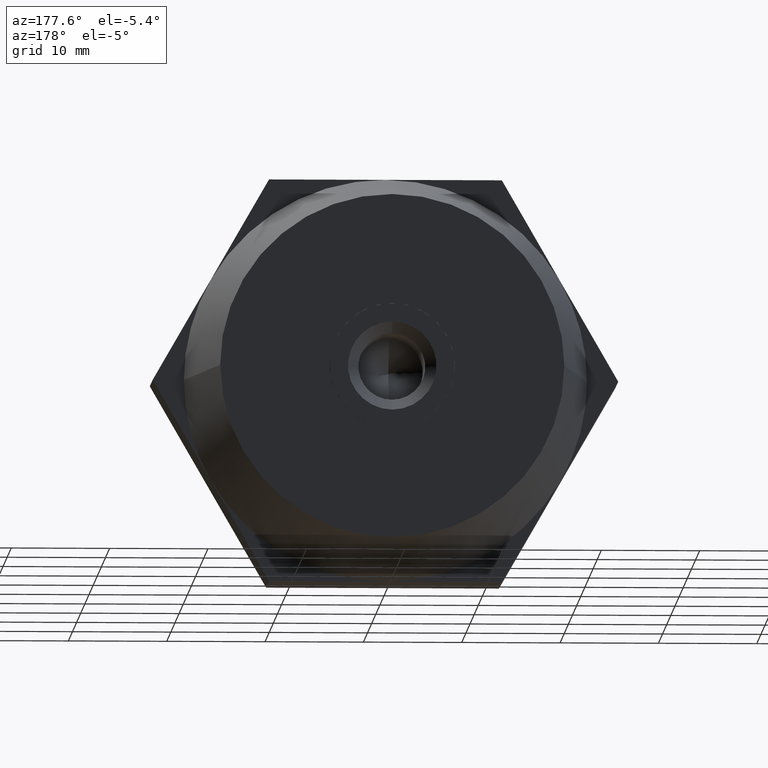
[diagram: clean part render]
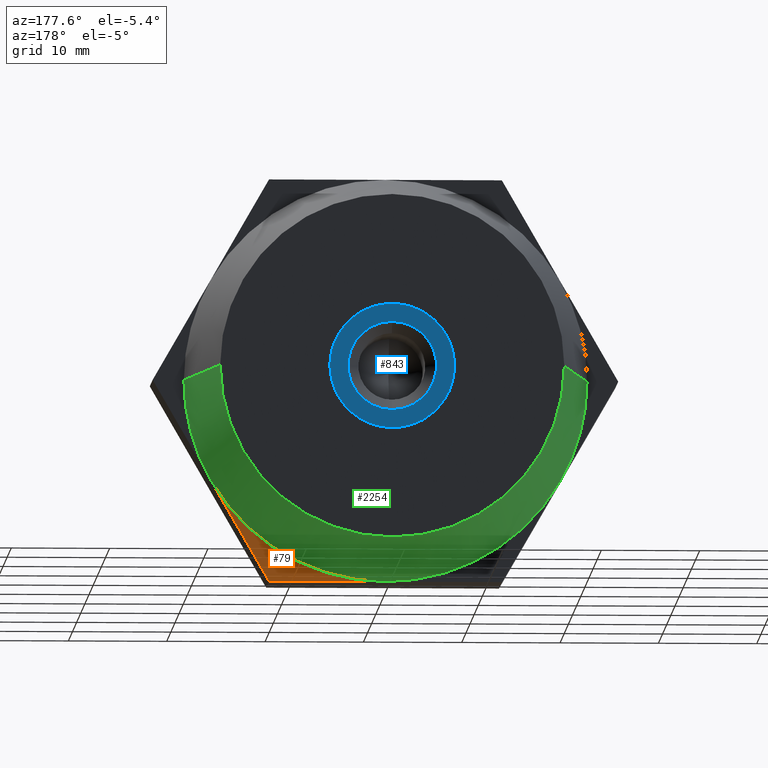
[diagram: same view with three faces highlighted in distinct colors, each labeled with its STEP entity id]
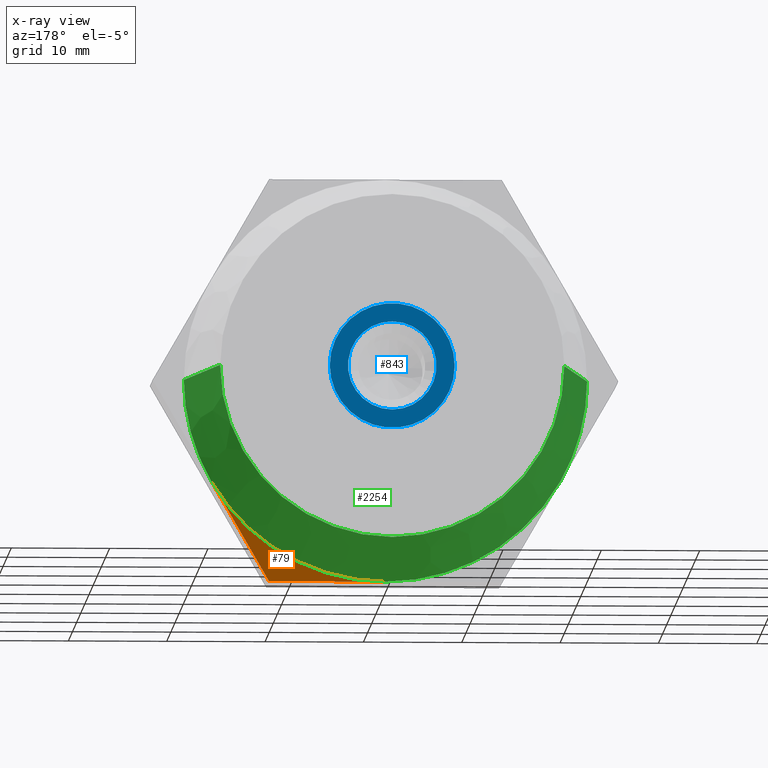
[diagram: x-ray of the same camera — body ghosted, the three highlighted faces saturated]
A machine part, auxiliary view with three faces highlighted in distinct colors.
The next image is the same camera in x-ray (body ghosted, the three faces saturated) — at least one of them is partly hidden behind the body in this view.
Their STEP definitions:

[orange] entity #79 — the highlighted planar face has unit normal (0, 1, 0).
#79 = ADVANCED_FACE ( 'NONE', ( #3376 ), #2252, .T. ) ;
#197 = ORIENTED_EDGE ( 'NONE', *, *, #301, .T. ) ;
#254 = ORIENTED_EDGE ( 'NONE', *, *, #2298, .F. ) ;
#263 = EDGE_LOOP ( 'NONE', ( #254, #901, #197 ) ) ;
#301 = EDGE_CURVE ( 'NONE', #1094, #3123, #3605, .T. ) ;
#402 = AXIS2_PLACEMENT_3D ( 'NONE', #3189, #3177, #1412 ) ;
#467 = DIRECTION ( 'NONE',  ( -1.224646799147352000E-016, 1.000000000000000000, 0.0000000000000000000 ) ) ;
#901 = ORIENTED_EDGE ( 'NONE', *, *, #3281, .T. ) ;
#1016 = VECTOR ( 'NONE', #1607, 1000.000000000000000 ) ;
#1094 = VERTEX_POINT ( 'NONE', #1375 ) ;
#1322 = CARTESIAN_POINT ( 'NONE',  ( 2.020667218593134700E-015, 3.500000000000000000, 0.0000000000000000000 ) ) ;
#1375 = CARTESIAN_POINT ( 'NONE',  ( 11.83568051838732100, 3.500000000000000000, -20.50000000000000000 ) ) ;
#1412 = DIRECTION ( 'NONE',  ( 0.0000000000000000000, 0.0000000000000000000, 1.000000000000000000 ) ) ;
#1567 = CARTESIAN_POINT ( 'NONE',  ( 17.75352077758099900, 3.500000000000000000, -10.25000000000000000 ) ) ;
#1607 = DIRECTION ( 'NONE',  ( -0.4999999999999998900, 0.0000000000000000000, -0.8660254037844387100 ) ) ;
#1882 = LINE ( 'NONE', #3655, #1016 ) ;
#1923 = DIRECTION ( 'NONE',  ( -1.000000000000000000, -1.269309860470834500E-016, 0.0000000000000000000 ) ) ;
#1949 = VECTOR ( 'NONE', #2963, 1000.000000000000000 ) ;
#2046 = AXIS2_PLACEMENT_3D ( 'NONE', #1322, #467, #1923 ) ;
#2070 = CIRCLE ( 'NONE', #2046, 20.50000000000000000 ) ;
#2078 = CARTESIAN_POINT ( 'NONE',  ( 3.004629197474319600E-015, 3.500000000000000000, -20.50000000000000000 ) ) ;
#2252 = PLANE ( 'NONE',  #402 ) ;
#2298 = EDGE_CURVE ( 'NONE', #3330, #3123, #2070, .T. ) ;
#2367 = CARTESIAN_POINT ( 'NONE',  ( 11.83568051838732100, 3.500000000000000000, -20.50000000000000000 ) ) ;
#2963 = DIRECTION ( 'NONE',  ( -1.000000000000000000, 0.0000000000000000000, -1.465672779255763900E-016 ) ) ;
#3123 = VERTEX_POINT ( 'NONE', #2078 ) ;
#3177 = DIRECTION ( 'NONE',  ( 0.0000000000000000000, 1.000000000000000000, 0.0000000000000000000 ) ) ;
#3189 = CARTESIAN_POINT ( 'NONE',  ( 0.0000000000000000000, 3.500000000000000000, 0.0000000000000000000 ) ) ;
#3281 = EDGE_CURVE ( 'NONE', #3330, #1094, #1882, .T. ) ;
#3330 = VERTEX_POINT ( 'NONE', #1567 ) ;
#3376 = FACE_OUTER_BOUND ( 'NONE', #263, .T. ) ;
#3605 = LINE ( 'NONE', #2367, #1949 ) ;
#3655 = CARTESIAN_POINT ( 'NONE',  ( 23.67136103677464800, 3.500000000000000000, -5.822956186009829800E-017 ) ) ;

[blue] entity #843 — the highlighted planar face has unit normal (0, 1, 0).
#2 = ORIENTED_EDGE ( 'NONE', *, *, #3726, .F. ) ;
#19 = CARTESIAN_POINT ( 'NONE',  ( 1.820041265480685300E-015, 10.00000000000000000, 6.377142138043370700E-018 ) ) ;
#24 = DIRECTION ( 'NONE',  ( 8.881784197001252300E-016, 0.0000000000000000000, 1.000000000000000000 ) ) ;
#25 = CIRCLE ( 'NONE', #2094, 6.349999999999999600 ) ;
#78 = CIRCLE ( 'NONE', #2231, 6.349999999999999600 ) ;
#87 = ORIENTED_EDGE ( 'NONE', *, *, #522, .F. ) ;
#100 = DIRECTION ( 'NONE',  ( 1.776356839400250500E-015, 0.0000000000000000000, 1.000000000000000000 ) ) ;
#144 = EDGE_CURVE ( 'NONE', #2422, #3531, #78, .T. ) ;
#211 = CARTESIAN_POINT ( 'NONE',  ( 1.820041265480685300E-015, 10.00000000000000000, 6.377142138043370700E-018 ) ) ;
#225 = DIRECTION ( 'NONE',  ( -0.0000000000000000000, -1.000000000000000000, -0.0000000000000000000 ) ) ;
#284 = VERTEX_POINT ( 'NONE', #2618 ) ;
#350 = DIRECTION ( 'NONE',  ( -0.0000000000000000000, -1.000000000000000000, -0.0000000000000000000 ) ) ;
#522 = EDGE_CURVE ( 'NONE', #3531, #3292, #25, .T. ) ;
#538 = AXIS2_PLACEMENT_3D ( 'NONE', #3551, #3510, #2377 ) ;
#561 = AXIS2_PLACEMENT_3D ( 'NONE', #211, #3716, #1083 ) ;
#641 = EDGE_CURVE ( 'NONE', #1772, #2422, #1621, .T. ) ;
#688 = CARTESIAN_POINT ( 'NONE',  ( 3.174999999999999800, 10.00000000000000000, -5.499261314031190100 ) ) ;
#729 = DIRECTION ( 'NONE',  ( 0.0000000000000000000, 0.0000000000000000000, 1.000000000000000000 ) ) ;
#734 = PLANE ( 'NONE',  #2396 ) ;
#843 = ADVANCED_FACE ( 'NONE', ( #2217, #2912 ), #734, .T. ) ;
#937 = AXIS2_PLACEMENT_3D ( 'NONE', #3600, #2981, #24 ) ;
#1083 = DIRECTION ( 'NONE',  ( 0.0000000000000000000, 0.0000000000000000000, 1.000000000000000000 ) ) ;
#1107 = ORIENTED_EDGE ( 'NONE', *, *, #2161, .F. ) ;
#1190 = VERTEX_POINT ( 'NONE', #2583 ) ;
#1271 = AXIS2_PLACEMENT_3D ( 'NONE', #2768, #3637, #729 ) ;
#1282 = CIRCLE ( 'NONE', #538, 4.500000000000000000 ) ;
#1429 = ORIENTED_EDGE ( 'NONE', *, *, #144, .F. ) ;
#1447 = CIRCLE ( 'NONE', #561, 6.349999999999999600 ) ;
#1561 = CIRCLE ( 'NONE', #3537, 6.349999999999999600 ) ;
#1621 = CIRCLE ( 'NONE', #937, 6.349999999999999600 ) ;
#1652 = CARTESIAN_POINT ( 'NONE',  ( 0.0000000000000000000, 10.00000000000000000, 4.500000000000000000 ) ) ;
#1772 = VERTEX_POINT ( 'NONE', #2899 ) ;
#1864 = ORIENTED_EDGE ( 'NONE', *, *, #641, .F. ) ;
#2059 = EDGE_CURVE ( 'NONE', #3292, #284, #1447, .T. ) ;
#2076 = CARTESIAN_POINT ( 'NONE',  ( -3.174999999999999800, 10.00000000000000000, 5.499261314031190100 ) ) ;
#2094 = AXIS2_PLACEMENT_3D ( 'NONE', #2199, #2843, #3389 ) ;
#2161 = EDGE_CURVE ( 'NONE', #284, #3197, #3312, .T. ) ;
#2199 = CARTESIAN_POINT ( 'NONE',  ( 1.820041265480685300E-015, 10.00000000000000000, 6.377142138043370700E-018 ) ) ;
#2217 = FACE_OUTER_BOUND ( 'NONE', #2234, .T. ) ;
#2231 = AXIS2_PLACEMENT_3D ( 'NONE', #2293, #225, #2575 ) ;
#2234 = EDGE_LOOP ( 'NONE', ( #87, #1429, #1864, #3497, #1107, #3623 ) ) ;
#2288 = VERTEX_POINT ( 'NONE', #1652 ) ;
#2293 = CARTESIAN_POINT ( 'NONE',  ( 1.820041265480685300E-015, 10.00000000000000000, 6.377142138043370700E-018 ) ) ;
#2377 = DIRECTION ( 'NONE',  ( 0.0000000000000000000, 0.0000000000000000000, 1.000000000000000000 ) ) ;
#2396 = AXIS2_PLACEMENT_3D ( 'NONE', #3608, #2429, #3628 ) ;
#2422 = VERTEX_POINT ( 'NONE', #2990 ) ;
#2429 = DIRECTION ( 'NONE',  ( 0.0000000000000000000, 1.000000000000000000, 0.0000000000000000000 ) ) ;
#2451 = CARTESIAN_POINT ( 'NONE',  ( -6.349999999999999600, 10.00000000000000000, 1.508691740875205000E-015 ) ) ;
#2575 = DIRECTION ( 'NONE',  ( 0.0000000000000000000, 0.0000000000000000000, 1.000000000000000000 ) ) ;
#2583 = CARTESIAN_POINT ( 'NONE',  ( 5.510910596163088600E-016, 10.00000000000000000, -4.500000000000000000 ) ) ;
#2618 = CARTESIAN_POINT ( 'NONE',  ( -3.174999999999999800, 10.00000000000000000, -5.499261314031190100 ) ) ;
#2715 = DIRECTION ( 'NONE',  ( -0.0000000000000000000, -1.000000000000000000, -0.0000000000000000000 ) ) ;
#2746 = CARTESIAN_POINT ( 'NONE',  ( 1.820041265480685300E-015, 10.00000000000000000, 6.377142138043370700E-018 ) ) ;
#2768 = CARTESIAN_POINT ( 'NONE',  ( 0.0000000000000000000, 10.00000000000000000, 0.0000000000000000000 ) ) ;
#2843 = DIRECTION ( 'NONE',  ( -0.0000000000000000000, -1.000000000000000000, -0.0000000000000000000 ) ) ;
#2899 = CARTESIAN_POINT ( 'NONE',  ( 6.349999999999999600, 10.00000000000000000, -1.495937456599114000E-015 ) ) ;
#2912 = FACE_BOUND ( 'NONE', #3755, .T. ) ;
#2981 = DIRECTION ( 'NONE',  ( -0.0000000000000000000, -1.000000000000000000, -0.0000000000000000000 ) ) ;
#2990 = CARTESIAN_POINT ( 'NONE',  ( 3.174999999999999800, 10.00000000000000000, 5.499261314031190100 ) ) ;
#3036 = ORIENTED_EDGE ( 'NONE', *, *, #3507, .F. ) ;
#3125 = EDGE_CURVE ( 'NONE', #3197, #1772, #1561, .T. ) ;
#3142 = CIRCLE ( 'NONE', #1271, 4.500000000000000000 ) ;
#3197 = VERTEX_POINT ( 'NONE', #688 ) ;
#3220 = DIRECTION ( 'NONE',  ( -8.881784197001252300E-016, 0.0000000000000000000, 1.000000000000000000 ) ) ;
#3292 = VERTEX_POINT ( 'NONE', #2451 ) ;
#3312 = CIRCLE ( 'NONE', #3714, 6.349999999999999600 ) ;
#3389 = DIRECTION ( 'NONE',  ( 0.0000000000000000000, 0.0000000000000000000, 1.000000000000000000 ) ) ;
#3497 = ORIENTED_EDGE ( 'NONE', *, *, #3125, .F. ) ;
#3507 = EDGE_CURVE ( 'NONE', #2288, #1190, #1282, .T. ) ;
#3510 = DIRECTION ( 'NONE',  ( 0.0000000000000000000, 1.000000000000000000, 0.0000000000000000000 ) ) ;
#3531 = VERTEX_POINT ( 'NONE', #2076 ) ;
#3537 = AXIS2_PLACEMENT_3D ( 'NONE', #19, #350, #3220 ) ;
#3551 = CARTESIAN_POINT ( 'NONE',  ( 0.0000000000000000000, 10.00000000000000000, 0.0000000000000000000 ) ) ;
#3600 = CARTESIAN_POINT ( 'NONE',  ( 1.820041265480685300E-015, 10.00000000000000000, 6.377142138043370700E-018 ) ) ;
#3608 = CARTESIAN_POINT ( 'NONE',  ( 0.0000000000000000000, 10.00000000000000000, 0.0000000000000000000 ) ) ;
#3623 = ORIENTED_EDGE ( 'NONE', *, *, #2059, .F. ) ;
#3628 = DIRECTION ( 'NONE',  ( 0.0000000000000000000, 0.0000000000000000000, 1.000000000000000000 ) ) ;
#3637 = DIRECTION ( 'NONE',  ( 0.0000000000000000000, 1.000000000000000000, 0.0000000000000000000 ) ) ;
#3714 = AXIS2_PLACEMENT_3D ( 'NONE', #2746, #2715, #100 ) ;
#3716 = DIRECTION ( 'NONE',  ( -0.0000000000000000000, -1.000000000000000000, -0.0000000000000000000 ) ) ;
#3726 = EDGE_CURVE ( 'NONE', #1190, #2288, #3142, .T. ) ;
#3755 = EDGE_LOOP ( 'NONE', ( #3036, #2 ) ) ;

[green] entity #2254 — the highlighted conical surface has half-angle 10.305 deg.
#40 = EDGE_CURVE ( 'NONE', #3401, #2930, #1762, .T. ) ;
#266 = CARTESIAN_POINT ( 'NONE',  ( 2.020667218593134700E-015, 3.500000000000000000, 0.0000000000000000000 ) ) ;
#300 = ORIENTED_EDGE ( 'NONE', *, *, #658, .T. ) ;
#455 = DIRECTION ( 'NONE',  ( -1.000000000000000000, -1.982541115402065400E-016, 0.0000000000000000000 ) ) ;
#467 = DIRECTION ( 'NONE',  ( -1.224646799147352000E-016, 1.000000000000000000, 0.0000000000000000000 ) ) ;
#496 = CIRCLE ( 'NONE', #1720, 20.50000000000000000 ) ;
#658 = EDGE_CURVE ( 'NONE', #3401, #1175, #1076, .T. ) ;
#663 = ORIENTED_EDGE ( 'NONE', *, *, #891, .T. ) ;
#679 = CARTESIAN_POINT ( 'NONE',  ( -2.624579619658250000E-031, 20.00000000000000000, 0.0000000000000000000 ) ) ;
#723 = DIRECTION ( 'NONE',  ( -1.224646799147352000E-016, 1.000000000000000000, 0.0000000000000000000 ) ) ;
#849 = CARTESIAN_POINT ( 'NONE',  ( 20.50000000000001800, 3.500000000000003600, 0.0000000000000000000 ) ) ;
#891 = EDGE_CURVE ( 'NONE', #3123, #3739, #1245, .T. ) ;
#895 = AXIS2_PLACEMENT_3D ( 'NONE', #679, #3033, #2155 ) ;
#909 = CARTESIAN_POINT ( 'NONE',  ( -17.50000000000000000, 19.99999999999999600, 2.143131898507868200E-015 ) ) ;
#964 = AXIS2_PLACEMENT_3D ( 'NONE', #1402, #3437, #3399 ) ;
#1027 = CARTESIAN_POINT ( 'NONE',  ( 2.020667218593134700E-015, 3.500000000000000000, 0.0000000000000000000 ) ) ;
#1055 = CARTESIAN_POINT ( 'NONE',  ( -2.624579619658250000E-031, 20.00000000000000000, 0.0000000000000000000 ) ) ;
#1076 = LINE ( 'NONE', #2056, #2350 ) ;
#1099 = CARTESIAN_POINT ( 'NONE',  ( -20.50000000000001400, 3.499999999999996400, 2.510525938252076100E-015 ) ) ;
#1130 = EDGE_LOOP ( 'NONE', ( #3529, #2822, #300, #3515, #2373, #663, #1874 ) ) ;
#1175 = VERTEX_POINT ( 'NONE', #849 ) ;
#1186 = DIRECTION ( 'NONE',  ( -0.1788854381999839300, -0.9838699100999073200, 2.190714793056821400E-017 ) ) ;
#1245 = CIRCLE ( 'NONE', #964, 20.50000000000000000 ) ;
#1266 = DIRECTION ( 'NONE',  ( -1.000000000000000000, -1.269309860470834500E-016, 0.0000000000000000000 ) ) ;
#1322 = CARTESIAN_POINT ( 'NONE',  ( 2.020667218593134700E-015, 3.500000000000000000, 0.0000000000000000000 ) ) ;
#1402 = CARTESIAN_POINT ( 'NONE',  ( 2.020667218593134700E-015, 3.500000000000000000, 0.0000000000000000000 ) ) ;
#1567 = CARTESIAN_POINT ( 'NONE',  ( 17.75352077758099900, 3.500000000000000000, -10.25000000000000000 ) ) ;
#1619 = VERTEX_POINT ( 'NONE', #1099 ) ;
#1720 = AXIS2_PLACEMENT_3D ( 'NONE', #1027, #723, #2762 ) ;
#1746 = VECTOR ( 'NONE', #1186, 1000.000000000000100 ) ;
#1751 = FACE_OUTER_BOUND ( 'NONE', #1130, .T. ) ;
#1762 = CIRCLE ( 'NONE', #3225, 17.50000000000000000 ) ;
#1765 = DIRECTION ( 'NONE',  ( -1.224646799147352000E-016, 1.000000000000000000, 0.0000000000000000000 ) ) ;
#1794 = CONICAL_SURFACE ( 'NONE', #895, 17.50000000000000000, 0.1798534997924791400 ) ;
#1804 = DIRECTION ( 'NONE',  ( 0.1788854381999841500, -0.9838699100999073200, 0.0000000000000000000 ) ) ;
#1874 = ORIENTED_EDGE ( 'NONE', *, *, #2765, .T. ) ;
#1875 = CARTESIAN_POINT ( 'NONE',  ( -17.75352077758099900, 3.500000000000000000, -10.25000000000000000 ) ) ;
#1923 = DIRECTION ( 'NONE',  ( -1.000000000000000000, -1.269309860470834500E-016, 0.0000000000000000000 ) ) ;
#1950 = EDGE_CURVE ( 'NONE', #1175, #3330, #496, .T. ) ;
#1984 = CIRCLE ( 'NONE', #2972, 20.50000000000000000 ) ;
#2046 = AXIS2_PLACEMENT_3D ( 'NONE', #1322, #467, #1923 ) ;
#2056 = CARTESIAN_POINT ( 'NONE',  ( 17.50000000000000000, 20.00000000000000400, 0.0000000000000000000 ) ) ;
#2070 = CIRCLE ( 'NONE', #2046, 20.50000000000000000 ) ;
#2078 = CARTESIAN_POINT ( 'NONE',  ( 3.004629197474319600E-015, 3.500000000000000000, -20.50000000000000000 ) ) ;
#2155 = DIRECTION ( 'NONE',  ( 1.000000000000000000, 1.982541115402065400E-016, 0.0000000000000000000 ) ) ;
#2172 = DIRECTION ( 'NONE',  ( -1.224646799147352000E-016, 1.000000000000000000, 0.0000000000000000000 ) ) ;
#2254 = ADVANCED_FACE ( 'NONE', ( #1751 ), #1794, .T. ) ;
#2298 = EDGE_CURVE ( 'NONE', #3330, #3123, #2070, .T. ) ;
#2350 = VECTOR ( 'NONE', #1804, 1000.000000000000100 ) ;
#2373 = ORIENTED_EDGE ( 'NONE', *, *, #2298, .T. ) ;
#2707 = LINE ( 'NONE', #909, #1746 ) ;
#2762 = DIRECTION ( 'NONE',  ( -1.000000000000000000, -1.269309860470834500E-016, 0.0000000000000000000 ) ) ;
#2765 = EDGE_CURVE ( 'NONE', #3739, #1619, #1984, .T. ) ;
#2822 = ORIENTED_EDGE ( 'NONE', *, *, #40, .F. ) ;
#2930 = VERTEX_POINT ( 'NONE', #3446 ) ;
#2972 = AXIS2_PLACEMENT_3D ( 'NONE', #266, #1765, #1266 ) ;
#3033 = DIRECTION ( 'NONE',  ( 1.224646799147352000E-016, -1.000000000000000000, 0.0000000000000000000 ) ) ;
#3123 = VERTEX_POINT ( 'NONE', #2078 ) ;
#3225 = AXIS2_PLACEMENT_3D ( 'NONE', #1055, #2172, #455 ) ;
#3330 = VERTEX_POINT ( 'NONE', #1567 ) ;
#3358 = CARTESIAN_POINT ( 'NONE',  ( 17.50000000000000000, 20.00000000000000400, 0.0000000000000000000 ) ) ;
#3399 = DIRECTION ( 'NONE',  ( -1.000000000000000000, -1.269309860470834500E-016, 0.0000000000000000000 ) ) ;
#3401 = VERTEX_POINT ( 'NONE', #3358 ) ;
#3437 = DIRECTION ( 'NONE',  ( -1.224646799147352000E-016, 1.000000000000000000, 0.0000000000000000000 ) ) ;
#3446 = CARTESIAN_POINT ( 'NONE',  ( -17.50000000000000000, 19.99999999999999600, 2.326828918379972200E-015 ) ) ;
#3515 = ORIENTED_EDGE ( 'NONE', *, *, #1950, .T. ) ;
#3529 = ORIENTED_EDGE ( 'NONE', *, *, #3599, .F. ) ;
#3599 = EDGE_CURVE ( 'NONE', #2930, #1619, #2707, .T. ) ;
#3739 = VERTEX_POINT ( 'NONE', #1875 ) ;